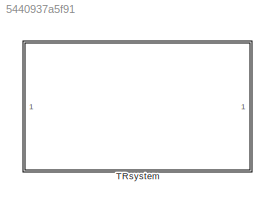
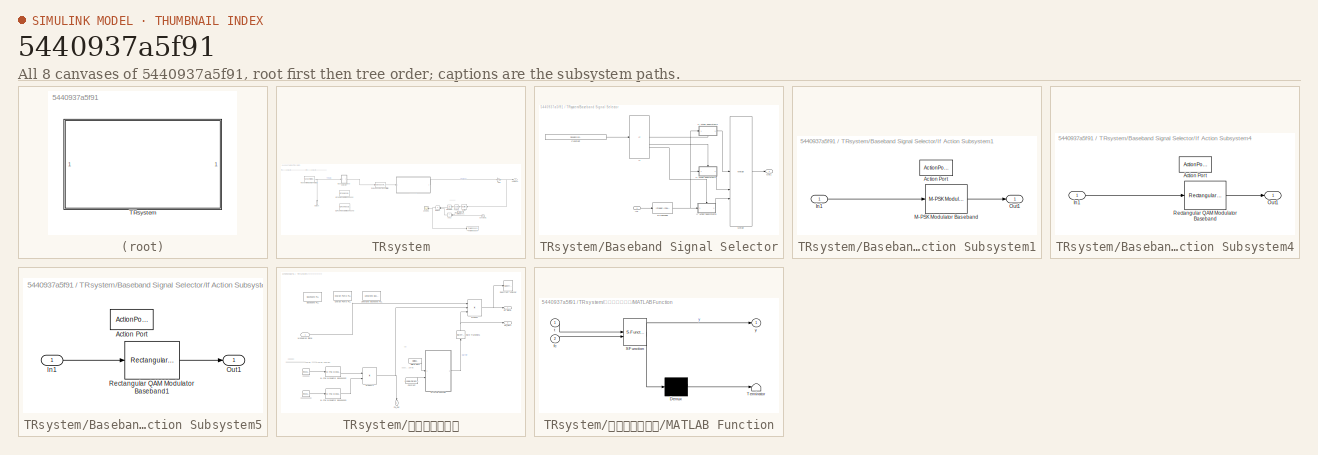
[diagram: thumbnail index - all 8 canvases of the model, root first then tree order]
MODEL slx_5440937a5f91
KIND model
CONFIG AbsTol = auto
CONFIG EnableMultiTasking = off
CONFIG FixedStep = auto
CONFIG InitFcn = Parameter_Initialize_1
CONFIG MaxStep = auto
CONFIG MinStep = auto
CONFIG RelTol = 1e-3
CONFIG SampleTimeConstraint = Unconstrained
CONFIG SolverName = VariableStepAuto
CONFIG StartTime = 0.0
CONFIG StopTime = 0.001
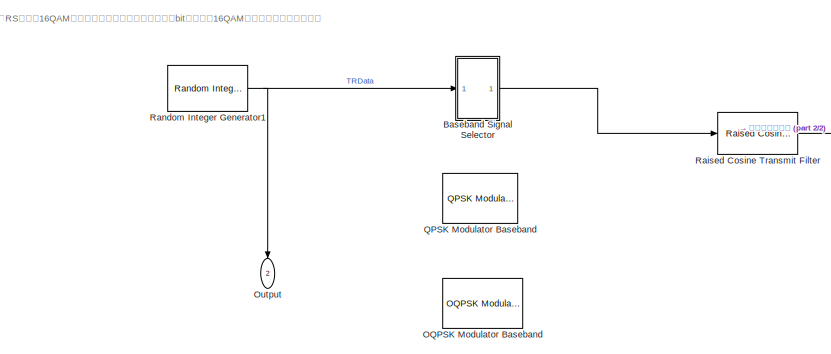
[diagram: TRsystem - part 1/2, middle left region]
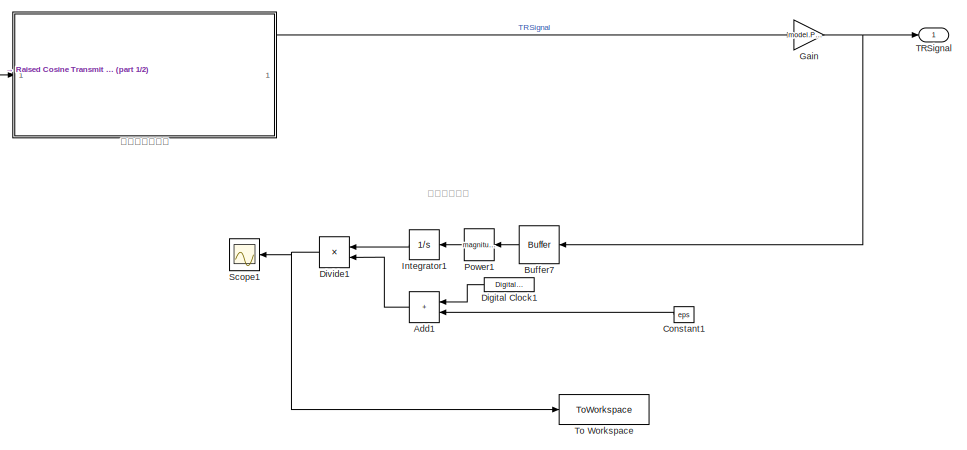
[diagram: TRsystem - part 2/2, right side, full height]
BLOCK [SubSystem] TRsystem
BLOCK [Sum] TRsystem/Add1
  IconShape = rectangular
  NameLocation = top
BLOCK [SubSystem] TRsystem/Baseband Signal Selector
BLOCK [Constant] TRsystem/Baseband Signal Selector/Constant
  Value = model.Parameters.TR.Baseband_Modulation_type
BLOCK [If] TRsystem/Baseband Signal Selector/If
  ElseIfExpressions = u1 == 2
  IfExpression = u1 == 1
BLOCK [SubSystem] TRsystem/Baseband Signal Selector/If Action Subsystem1
  TreatAsAtomicUnit = on
BLOCK [ActionPort] TRsystem/Baseband Signal Selector/If Action Subsystem1/Action Port
  ActionPortLabel = elseif(u1 == 2)
BLOCK [Inport] TRsystem/Baseband Signal Selector/If Action Subsystem1/In1
BLOCK [Reference] TRsystem/Baseband Signal Selector/If Action Subsystem1/M-PSK Modulator Baseband  REF=commdigbbndpm3/M-PSK
Modulator
Baseband
  SourceBlock = commdigbbndpm3/M-PSK\nModulator\nBaseband
  SourceType = M-PSK Modulator Baseband
BLOCK [Outport] TRsystem/Baseband Signal Selector/If Action Subsystem1/Out1
BLOCK [SubSystem] TRsystem/Baseband Signal Selector/If Action Subsystem4
  TreatAsAtomicUnit = on
BLOCK [ActionPort] TRsystem/Baseband Signal Selector/If Action Subsystem4/Action Port
  ActionPortLabel = if(u1 == 1)
BLOCK [Inport] TRsystem/Baseband Signal Selector/If Action Subsystem4/In1
BLOCK [Outport] TRsystem/Baseband Signal Selector/If Action Subsystem4/Out1
BLOCK [Reference] TRsystem/Baseband Signal Selector/If Action Subsystem4/Rectangular QAM Modulator Baseband  REF=commdigbbndam3/Rectangular QAM
Modulator
Baseband
  LibrarySourceBlock = commhdldigbbndam/Rectangular QAM\nModulator\nBaseband
  SourceBlock = commdigbbndam3/Rectangular QAM\nModulator\nBaseband
  SourceType = Rectangular QAM Modulator Baseband
BLOCK [SubSystem] TRsystem/Baseband Signal Selector/If Action Subsystem5
  TreatAsAtomicUnit = on
BLOCK [ActionPort] TRsystem/Baseband Signal Selector/If Action Subsystem5/Action Port
  ActionPortLabel = else
BLOCK [Inport] TRsystem/Baseband Signal Selector/If Action Subsystem5/In1
BLOCK [Outport] TRsystem/Baseband Signal Selector/If Action Subsystem5/Out1
BLOCK [Reference] TRsystem/Baseband Signal Selector/If Action Subsystem5/Rectangular QAM Modulator Baseband1  REF=commdigbbndam3/Rectangular QAM
Modulator
Baseband
  LibrarySourceBlock = commhdldigbbndam/Rectangular QAM\nModulator\nBaseband
  SourceBlock = commdigbbndam3/Rectangular QAM\nModulator\nBaseband
  SourceType = Rectangular QAM Modulator Baseband
BLOCK [Inport] TRsystem/Baseband Signal Selector/In1
BLOCK [Merge] TRsystem/Baseband Signal Selector/Merge
  Inputs = 3
BLOCK [Outport] TRsystem/Baseband Signal Selector/Out1
BLOCK [Reference] TRsystem/Baseband Signal Selector/RS Encoder  REF=commblkcod2/Integer-Input
RS Encoder
  SourceBlock = commblkcod2/Integer-Input\nRS Encoder
  SourceType = Integer-Input RS Encoder
BLOCK [Buffer] TRsystem/Buffer7
  N = 1
  NameLocation = top
  OutputFrames = off
BLOCK [Constant] TRsystem/Constant1
  NameLocation = top
  SampleTime = model.Parameters.TR.system_frame_speed
  Value = eps
BLOCK [DigitalClock] TRsystem/Digital Clock1
  NameLocation = top
  SampleTime = model.Parameters.TR.system_frame_speed
BLOCK [Product] TRsystem/Divide1
  Inputs = */
  NameLocation = top
BLOCK [Gain] TRsystem/Gain
  Gain = model.Parameters.TR.communication_sig_power_controller_coeffience
BLOCK [Integrator] TRsystem/Integrator1
  NameLocation = top
BLOCK [Reference] TRsystem/OQPSK Modulator Baseband  REF=commdigbbndpm3/OQPSK
Modulator
Baseband
  Commented = on
  SourceBlock = commdigbbndpm3/OQPSK\nModulator\nBaseband
  SourceType = OQPSK Modulator Baseband
  UserDataPersistent = on
BLOCK [Outport] TRsystem/Output
  NameLocation = left
  Port = 2
BLOCK [Math] TRsystem/Power1
  NameLocation = top
  Operator = magnitude^2
BLOCK [Reference] TRsystem/QPSK Modulator Baseband  REF=commdigbbndpm3/QPSK
Modulator
Baseband
  Commented = on
  SourceBlock = commdigbbndpm3/QPSK\nModulator\nBaseband
  SourceType = QPSK Modulator Baseband
BLOCK [Reference] TRsystem/Raised Cosine Transmit Filter  REF=commfilt2/Raised Cosine
Transmit Filter
  SourceBlock = commfilt2/Raised Cosine\nTransmit Filter
  SourceType = Raised Cosine Transmit Filter
BLOCK [Reference] TRsystem/Random Integer Generator1  REF=commrandsrc3/Random Integer
Generator
  SourceBlock = commrandsrc3/Random Integer\nGenerator
  SourceType = Random Integer Generator
BLOCK [Scope] TRsystem/Scope1
  Floating = off
  NameLocation = top
  NumInputPorts = 1
  ScopeSpecificationString = Simulink.scopes.TimeScopeBlockCfg('CurrentConfiguration', extmgr.ConfigurationSet(extmgr.Configuration('Core','General UI',true),extmgr.Configuration('Core','Source UI',true),extmgr.Configuration('Sources','WiredSimulink',true,'DataLoggingVariableName','ScopeData1'),extmgr.Configuration('Visuals','Time Domain',true,'SerializedDisplays',{struct('MinYLimReal','-5364832519179.18262','MaxYLimReal','48...<+1826ch>
BLOCK [Outport] TRsystem/TRSignal
BLOCK [ToWorkspace] TRsystem/To Workspace
  FixptAsFi = on
  MaxDataPoints = inf
  SampleTime = -1
  SaveFormat = Timeseries
  VariableName = PowerEstimation
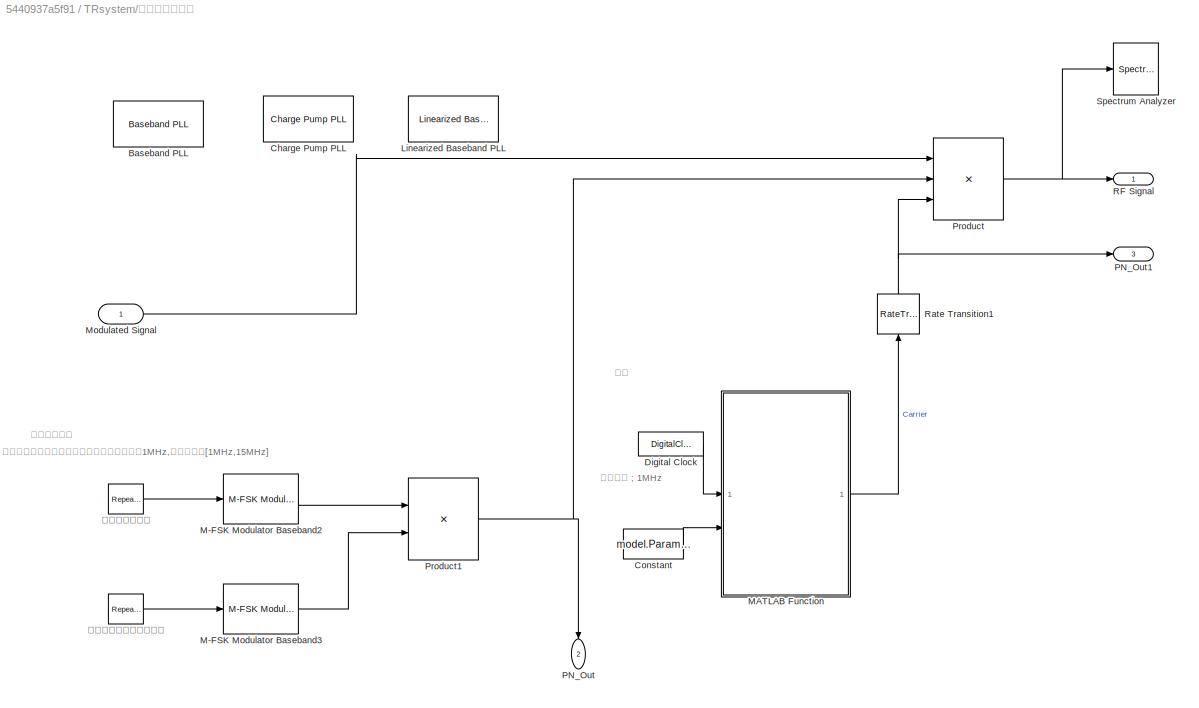
BLOCK [SubSystem] TRsystem/跳频和频谱搬移
BLOCK [Reference] TRsystem/跳频和频谱搬移/Baseband PLL  REF=commsynccomp2/Baseband
PLL
  Commented = on
  SourceBlock = commsynccomp2/Baseband\nPLL
  SourceType = Baseband PLL
BLOCK [Reference] TRsystem/跳频和频谱搬移/Charge Pump PLL  REF=commsynccomp2/Charge Pump
PLL
  Commented = on
  SourceBlock = commsynccomp2/Charge Pump\nPLL
  SourceType = Charge Pump PLL
BLOCK [Constant] TRsystem/跳频和频谱搬移/Constant
  Value = model.Parameters.TR.Constant.fc
BLOCK [DigitalClock] TRsystem/跳频和频谱搬移/Digital Clock
  SampleTime = model.Parameters.TR.Digital_Clock.fc_Ts
BLOCK [Reference] TRsystem/跳频和频谱搬移/Linearized Baseband PLL  REF=commsynccomp2/Linearized Baseband
PLL
  Commented = on
  SourceBlock = commsynccomp2/Linearized Baseband\nPLL
  SourceType = Linearized Baseband PLL
BLOCK [Reference] TRsystem/跳频和频谱搬移/M-FSK Modulator Baseband2  REF=commdigbbndfm2/M-FSK
Modulator
Baseband
  SourceBlock = commdigbbndfm2/M-FSK\nModulator\nBaseband
  SourceType = M-FSK Modulator Baseband
  UserDataPersistent = on
BLOCK [Reference] TRsystem/跳频和频谱搬移/M-FSK Modulator Baseband3  REF=commdigbbndfm2/M-FSK
Modulator
Baseband
  SourceBlock = commdigbbndfm2/M-FSK\nModulator\nBaseband
  SourceType = M-FSK Modulator Baseband
  UserDataPersistent = on
BLOCK [SubSystem] TRsystem/跳频和频谱搬移/MATLAB Function
  ErrorFcn = Stateflow.Translate.translate
  LibrarySourceBlock = simulink/User-Defined\nFunctions/MATLAB Function
  PermitHierarchicalResolution = ExplicitOnly
  SFBlockType = MATLAB Function
  TreatAsAtomicUnit = on
BLOCK [Demux] TRsystem/跳频和频谱搬移/MATLAB Function/ Demux 
  Outputs = 1
BLOCK [S-Function] TRsystem/跳频和频谱搬移/MATLAB Function/ SFunction 
  EnableBusSupport = on
  FunctionName = sf_sfun
  PortCounts = [2 2]
  SFcnIsStateOwnerBlock = off
  SFunctionDeploymentMode = off
  Tag = Stateflow S-Function 1
BLOCK [Terminator] TRsystem/跳频和频谱搬移/MATLAB Function/ Terminator 
BLOCK [Inport] TRsystem/跳频和频谱搬移/MATLAB Function/fc
  Port = 2
BLOCK [Inport] TRsystem/跳频和频谱搬移/MATLAB Function/t
BLOCK [Outport] TRsystem/跳频和频谱搬移/MATLAB Function/y
BLOCK [Inport] TRsystem/跳频和频谱搬移/Modulated Signal
BLOCK [Outport] TRsystem/跳频和频谱搬移/PN_Out
  NameLocation = left
  Port = 2
BLOCK [Outport] TRsystem/跳频和频谱搬移/PN_Out1
  Port = 3
BLOCK [Product] TRsystem/跳频和频谱搬移/Product
  Inputs = 3
BLOCK [Product] TRsystem/跳频和频谱搬移/Product1
BLOCK [Outport] TRsystem/跳频和频谱搬移/RF Signal
BLOCK [RateTransition] TRsystem/跳频和频谱搬移/Rate Transition1
  NameLocation = right
BLOCK [SpectrumAnalyzer] TRsystem/跳频和频谱搬移/Spectrum Analyzer
  Commented = on
  ScopeSpecificationString = spbscopes.SpectrumAnalyzerBlockCfg('CurrentConfiguration', extmgr.ConfigurationSet(extmgr.Configuration('Core','General UI',true),extmgr.Configuration('Core','Source UI',true),extmgr.Configuration('Sources','WiredSimulink',true),extmgr.Configuration('Visuals','Spectrum',true,'AxesProperties',struct('Color',{[0 0 0],[0 0 0]},'XColor',{[0.686274509803922 0.686274509803922 0.686274509803922],[0.68627...<+3361ch>
BLOCK [Reference] TRsystem/跳频和频谱搬移/作为载波帧信号编码码元  REF=simulink/Sources/Repeating
Sequence
Stair
  SourceBlock = simulink/Sources/Repeating\nSequence\nStair
  SourceType = Repeating Sequence Stair
BLOCK [Reference] TRsystem/跳频和频谱搬移/帧信号编码码元  REF=simulink/Sources/Repeating
Sequence
Stair
  SourceBlock = simulink/Sources/Repeating\nSequence\nStair
  SourceType = Repeating Sequence Stair
ANNOTATION TRsystem: 功率估计部分
ANNOTATION TRsystem: 加入了RS编码的16QAM调制，三路输出分别为基带码元的bit序列、经16QAM调制后信号的实部和虚部
ANNOTATION TRsystem/跳频和频谱搬移: 产生跳频序列，并生成基带跳频，跳频间隔是1MHz,跳频范围是[1MHz,15MHz]
ANNOTATION TRsystem/跳频和频谱搬移: 本地载波 ; 1MHz
ANNOTATION TRsystem/跳频和频谱搬移: 跳频基带信号
ANNOTATION TRsystem/跳频和频谱搬移: 载波
LINE TRsystem/Add1:1 -> TRsystem/Divide1:2
LINE TRsystem/Baseband Signal Selector/Constant:1 -> TRsystem/Baseband Signal Selector/If:1
LINE TRsystem/Baseband Signal Selector/If Action Subsystem1/In1:1 -> TRsystem/Baseband Signal Selector/If Action Subsystem1/M-PSK Modulator Baseband:1
LINE TRsystem/Baseband Signal Selector/If Action Subsystem1/M-PSK Modulator Baseband:1 -> TRsystem/Baseband Signal Selector/If Action Subsystem1/Out1:1
LINE TRsystem/Baseband Signal Selector/If Action Subsystem1:1 -> TRsystem/Baseband Signal Selector/Merge:2
LINE TRsystem/Baseband Signal Selector/If Action Subsystem4/In1:1 -> TRsystem/Baseband Signal Selector/If Action Subsystem4/Rectangular QAM Modulator Baseband:1
LINE TRsystem/Baseband Signal Selector/If Action Subsystem4/Rectangular QAM Modulator Baseband:1 -> TRsystem/Baseband Signal Selector/If Action Subsystem4/Out1:1
LINE TRsystem/Baseband Signal Selector/If Action Subsystem4:1 -> TRsystem/Baseband Signal Selector/Merge:1
LINE TRsystem/Baseband Signal Selector/If Action Subsystem5/In1:1 -> TRsystem/Baseband Signal Selector/If Action Subsystem5/Rectangular QAM Modulator Baseband1:1
LINE TRsystem/Baseband Signal Selector/If Action Subsystem5/Rectangular QAM Modulator Baseband1:1 -> TRsystem/Baseband Signal Selector/If Action Subsystem5/Out1:1
LINE TRsystem/Baseband Signal Selector/If Action Subsystem5:1 -> TRsystem/Baseband Signal Selector/Merge:3
LINE TRsystem/Baseband Signal Selector/If:1 -> TRsystem/Baseband Signal Selector/If Action Subsystem4:ifaction
LINE TRsystem/Baseband Signal Selector/If:2 -> TRsystem/Baseband Signal Selector/If Action Subsystem1:ifaction
LINE TRsystem/Baseband Signal Selector/If:3 -> TRsystem/Baseband Signal Selector/If Action Subsystem5:ifaction
LINE TRsystem/Baseband Signal Selector/In1:1 -> TRsystem/Baseband Signal Selector/RS Encoder:1
LINE TRsystem/Baseband Signal Selector/Merge:1 -> TRsystem/Baseband Signal Selector/Out1:1
NET TRsystem/Baseband Signal Selector/RS Encoder:1 -> TRsystem/Baseband Signal Selector/If Action Subsystem1:1, TRsystem/Baseband Signal Selector/If Action Subsystem4:1, TRsystem/Baseband Signal Selector/If Action Subsystem5:1
LINE TRsystem/Baseband Signal Selector:1 -> TRsystem/Raised Cosine Transmit Filter:1
LINE TRsystem/Buffer7:1 -> TRsystem/Power1:1
LINE TRsystem/Constant1:1 -> TRsystem/Add1:2
LINE TRsystem/Digital Clock1:1 -> TRsystem/Add1:1
NET TRsystem/Divide1:1 -> TRsystem/Scope1:1, TRsystem/To Workspace:1
NET TRsystem/Gain:1 -> TRsystem/Buffer7:1, TRsystem/TRSignal:1
LINE TRsystem/Integrator1:1 -> TRsystem/Divide1:1
LINE TRsystem/Power1:1 -> TRsystem/Integrator1:1
LINE TRsystem/Raised Cosine Transmit Filter:1 -> TRsystem/跳频和频谱搬移:1
NET TRsystem/Random Integer Generator1:1 -> TRsystem/Baseband Signal Selector:1, TRsystem/Output:1
LINE TRsystem/跳频和频谱搬移/Constant:1 -> TRsystem/跳频和频谱搬移/MATLAB Function:2
LINE TRsystem/跳频和频谱搬移/Digital Clock:1 -> TRsystem/跳频和频谱搬移/MATLAB Function:1
LINE TRsystem/跳频和频谱搬移/M-FSK Modulator Baseband2:1 -> TRsystem/跳频和频谱搬移/Product1:1
LINE TRsystem/跳频和频谱搬移/M-FSK Modulator Baseband3:1 -> TRsystem/跳频和频谱搬移/Product1:2
LINE TRsystem/跳频和频谱搬移/MATLAB Function:1 -> TRsystem/跳频和频谱搬移/Rate Transition1:1
LINE TRsystem/跳频和频谱搬移/Modulated Signal:1 -> TRsystem/跳频和频谱搬移/Product:1
NET TRsystem/跳频和频谱搬移/Product1:1 -> TRsystem/跳频和频谱搬移/PN_Out:1, TRsystem/跳频和频谱搬移/Product:2
NET TRsystem/跳频和频谱搬移/Product:1 -> TRsystem/跳频和频谱搬移/RF Signal:1, TRsystem/跳频和频谱搬移/Spectrum Analyzer:1
NET TRsystem/跳频和频谱搬移/Rate Transition1:1 -> TRsystem/跳频和频谱搬移/PN_Out1:1, TRsystem/跳频和频谱搬移/Product:3
LINE TRsystem/跳频和频谱搬移/作为载波帧信号编码码元:1 -> TRsystem/跳频和频谱搬移/M-FSK Modulator Baseband3:1
LINE TRsystem/跳频和频谱搬移/帧信号编码码元:1 -> TRsystem/跳频和频谱搬移/M-FSK Modulator Baseband2:1
LINE TRsystem/跳频和频谱搬移:1 -> TRsystem/Gain:1
note: NET lines group one-source signal fan-out (src -> all destinations, sorted); 1:1 wires keep LINE
CHART TRsystem/跳频和频谱搬移/MATLAB Function states=1 transitions=1
  STATE_LABEL 'eML_blk_kernel()'
  STATE_LABEL 'SCRIPT:\nfunction y = fcn(t,fc)\n%     fs = 40e6;\n%     Ts = 1/fs;\n%     t = 0:Ts:0.002;\n%     fc = 1e6;\n    y = exp(1i*2*pi*fc*t);\n\nend\n'
CHART  states=0 transitions=0
